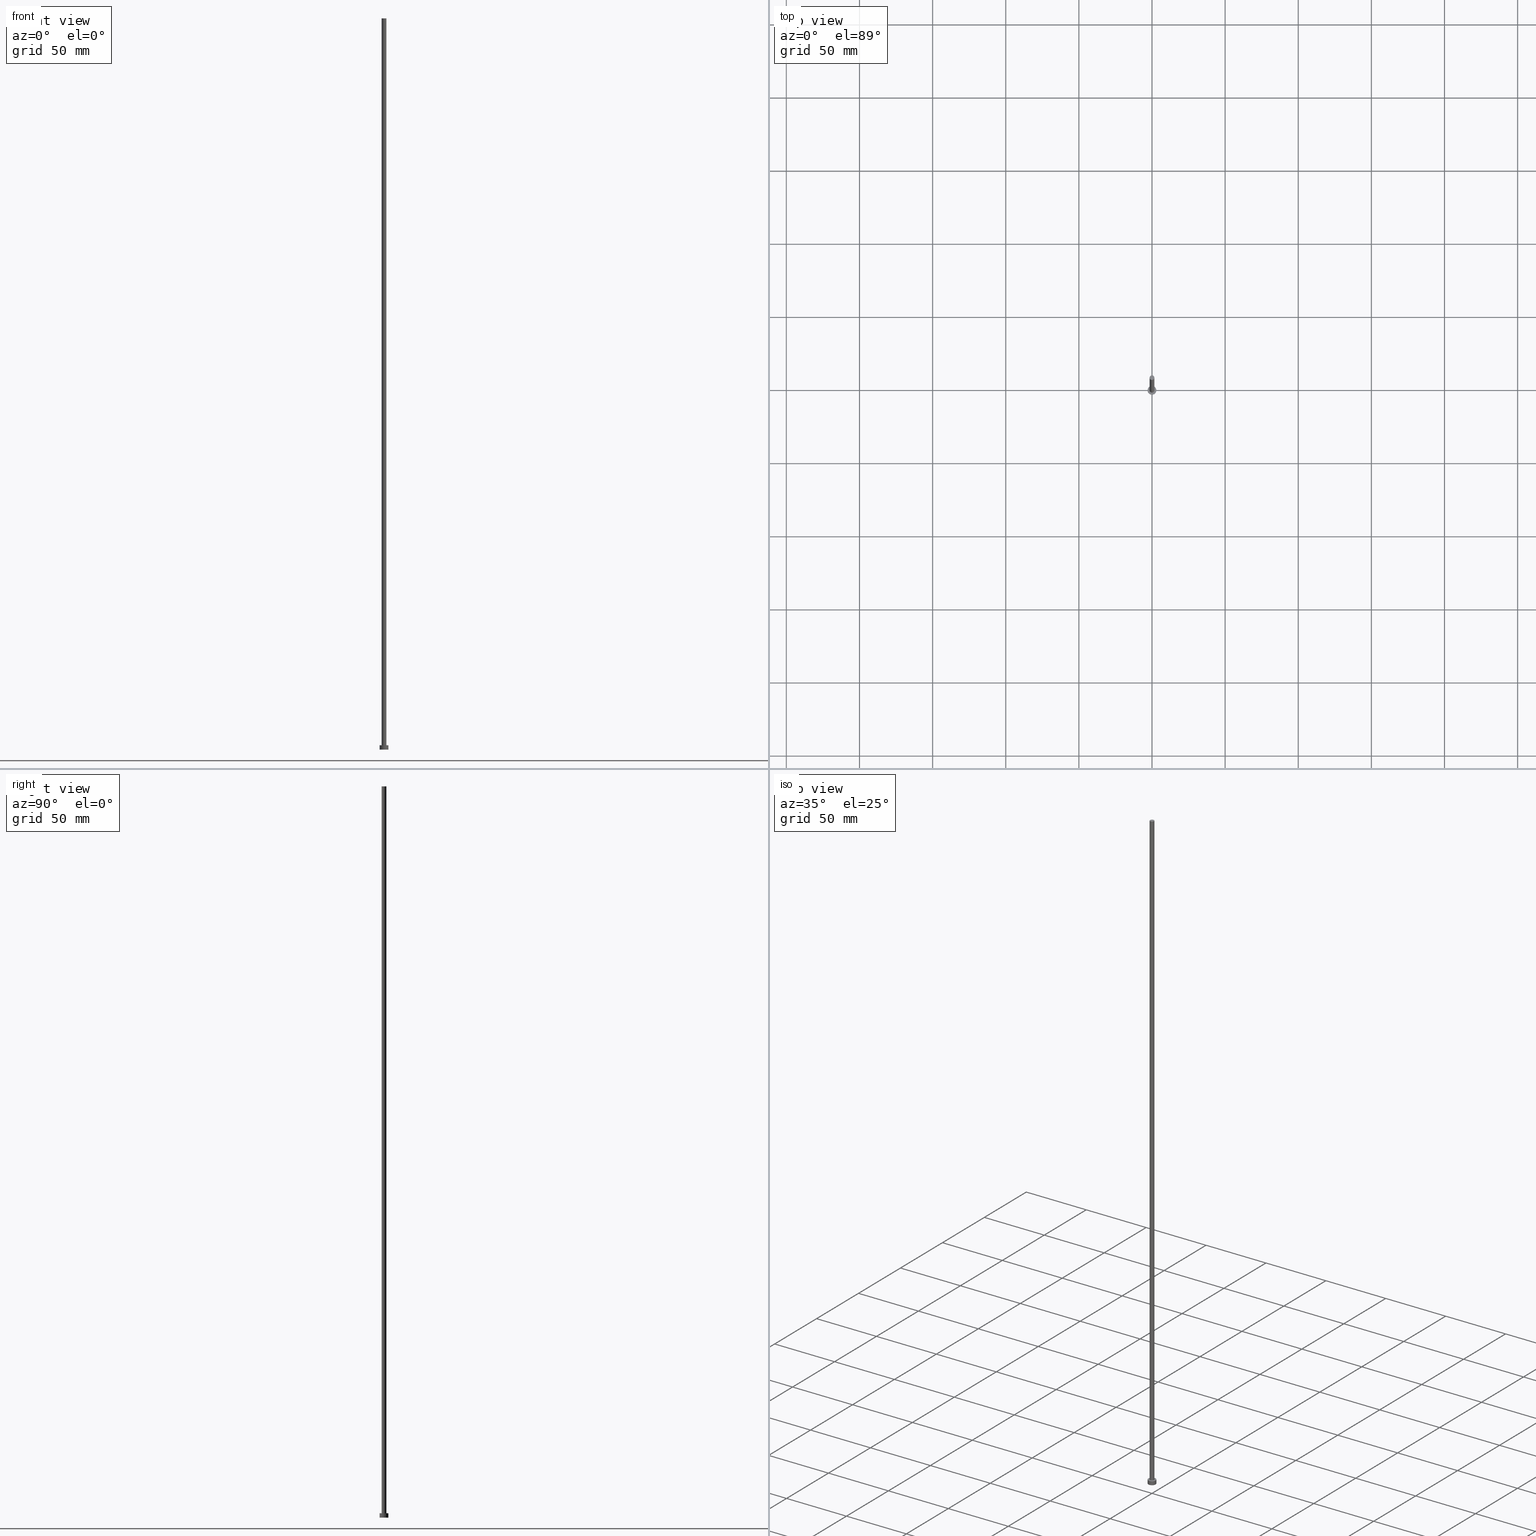
[diagram: canonical four-view strip — front | top / right | iso, engineering-drawing reading convention]
A machine part, canonical four-view strip (front | top / right | iso — engineering-drawing reading convention). The complete STEP part file that produces these views, byte-faithful:
ISO-10303-21;
HEADER;
FILE_DESCRIPTION (( 'STEP AP203' ),
    '1' );
FILE_NAME ('9312.STEP',
    '2023-02-13T16:24:27',
    ( '' ),
    ( '' ),
    'SwSTEP 2.0',
    'SolidWorks 2019',
    '' );
FILE_SCHEMA (( 'CONFIG_CONTROL_DESIGN' ));
ENDSEC;

DATA;
#1 = DIRECTION ( 'NONE',  ( 1.000000000000000000, 0.000000000000000000, 0.000000000000000000 ) ) ;
#2 = DIRECTION ( 'NONE',  ( 0.000000000000000000, 0.000000000000000000, 1.000000000000000000 ) ) ;
#3 = VECTOR ( 'NONE', #23, 1000.000000000000000 ) ;
#4 = AXIS2_PLACEMENT_3D ( 'NONE', #56, #176, #54 ) ;
#5 = UNCERTAINTY_MEASURE_WITH_UNIT (LENGTH_MEASURE( 1.000000000000000082E-05 ), #64, 'distance_accuracy_value', 'NONE');
#6 = CARTESIAN_POINT ( 'NONE',  ( -1.600000000000000089, 0.000000000000000000, 3.000000000000000000 ) ) ;
#7 = CALENDAR_DATE ( 2023, 13, 2 ) ;
#8 = CC_DESIGN_APPROVAL ( #170, ( #150 ) ) ;
#9 = CALENDAR_DATE ( 2023, 13, 2 ) ;
#10 = COORDINATED_UNIVERSAL_TIME_OFFSET ( 1, 0, .AHEAD. ) ;
#11 = CC_DESIGN_DATE_AND_TIME_ASSIGNMENT ( #203, #71, ( #167 ) ) ;
#12 = CALENDAR_DATE ( 2023, 13, 2 ) ;
#13 = VERTEX_POINT ( 'NONE', #14 ) ;
#14 = CARTESIAN_POINT ( 'NONE',  ( 3.000000000000000444, 3.673940397442060361E-16, 3.000000000000000000 ) ) ;
#15 = DIRECTION ( 'NONE',  ( -0.000000000000000000, -0.000000000000000000, -1.000000000000000000 ) ) ;
#16 = CARTESIAN_POINT ( 'NONE',  ( -3.000000000000000444, 0.000000000000000000, 3.000000000000000000 ) ) ;
#17 = CARTESIAN_POINT ( 'NONE',  ( -3.000000000000000444, 0.000000000000000000, 0.000000000000000000 ) ) ;
#18 = CARTESIAN_POINT ( 'NONE',  ( 0.000000000000000000, 0.000000000000000000, 3.000000000000000000 ) ) ;
#19 = CC_DESIGN_SECURITY_CLASSIFICATION ( #167, ( #48 ) ) ;
#20 =( NAMED_UNIT ( * ) PLANE_ANGLE_UNIT ( ) SI_UNIT ( $, .RADIAN. ) );
#21 = LINE ( 'NONE', #86, #254 ) ;
#22 = CC_DESIGN_PERSON_AND_ORGANIZATION_ASSIGNMENT ( #127, #45, ( #150 ) ) ;
#23 = DIRECTION ( 'NONE',  ( -0.000000000000000000, -0.000000000000000000, -1.000000000000000000 ) ) ;
#24 =( GEOMETRIC_REPRESENTATION_CONTEXT ( 3 ) GLOBAL_UNCERTAINTY_ASSIGNED_CONTEXT ( ( #5 ) ) GLOBAL_UNIT_ASSIGNED_CONTEXT ( ( #64, #20, #141 ) ) REPRESENTATION_CONTEXT ( 'NONE', 'WORKASPACE' ) );
#25 = EDGE_CURVE ( 'NONE', #106, #13, #249, .T. ) ;
#26 = PERSON_AND_ORGANIZATION ( #142, #43 ) ;
#27 = PERSON_AND_ORGANIZATION_ROLE ( 'design_owner' ) ;
#28 = DATE_AND_TIME ( #146, #53 ) ;
#29 = DATE_AND_TIME ( #166, #40 ) ;
#30 = ORIENTED_EDGE ( 'NONE', *, *, #159, .T. ) ;
#31 = VERTEX_POINT ( 'NONE', #250 ) ;
#32 = CARTESIAN_POINT ( 'NONE',  ( 0.000000000000000000, 0.000000000000000000, 3.000000000000000000 ) ) ;
#33 = ORIENTED_EDGE ( 'NONE', *, *, #139, .F. ) ;
#34 = CIRCLE ( 'NONE', #4, 3.000000000000000444 ) ;
#35 = APPROVAL_PERSON_ORGANIZATION ( #107, #72, #105 ) ;
#36 = DIRECTION ( 'NONE',  ( 1.000000000000000000, 0.000000000000000000, 0.000000000000000000 ) ) ;
#37 = CARTESIAN_POINT ( 'NONE',  ( 0.000000000000000000, 0.000000000000000000, 0.000000000000000000 ) ) ;
#38 = CARTESIAN_POINT ( 'NONE',  ( -3.000000000000000444, 0.000000000000000000, 3.000000000000000000 ) ) ;
#39 = PLANE ( 'NONE',  #145 ) ;
#40 = LOCAL_TIME ( 17, 24, 27.00000000000000000, #183 ) ;
#41 = CARTESIAN_POINT ( 'NONE',  ( 3.000000000000000444, 3.673940397442060361E-16, 3.000000000000000000 ) ) ;
#42 = AXIS2_PLACEMENT_3D ( 'NONE', #111, #218, #1 ) ;
#43 = ORGANIZATION ( 'NEUR�EN�', 'NEUR�EN�', '' ) ;
#44 = MECHANICAL_CONTEXT ( 'NONE', #248, 'mechanical' ) ;
#45 = PERSON_AND_ORGANIZATION_ROLE ( 'creator' ) ;
#46 = APPROVAL_ROLE ( '' ) ;
#47 = ORIENTED_EDGE ( 'NONE', *, *, #215, .T. ) ;
#48 = PRODUCT_DEFINITION_FORMATION_WITH_SPECIFIED_SOURCE ( 'LIBOVOLN�', '', #74, .NOT_KNOWN. ) ;
#49 = PRODUCT_RELATED_PRODUCT_CATEGORY ( 'detail', '', ( #74 ) ) ;
#50 = DATE_AND_TIME ( #7, #233 ) ;
#51 = ORIENTED_EDGE ( 'NONE', *, *, #25, .T. ) ;
#52 = APPROVAL ( #104, 'NEUR�EN�' ) ;
#53 = LOCAL_TIME ( 17, 24, 27.00000000000000000, #165 ) ;
#54 = DIRECTION ( 'NONE',  ( 1.000000000000000000, 0.000000000000000000, 0.000000000000000000 ) ) ;
#55 = LINE ( 'NONE', #210, #212 ) ;
#56 = CARTESIAN_POINT ( 'NONE',  ( 0.000000000000000000, 0.000000000000000000, 3.000000000000000000 ) ) ;
#57 = CIRCLE ( 'NONE', #227, 3.000000000000000444 ) ;
#58 = VERTEX_POINT ( 'NONE', #17 ) ;
#59 = FACE_OUTER_BOUND ( 'NONE', #191, .T. ) ;
#60 = CIRCLE ( 'NONE', #220, 1.600000000000000089 ) ;
#61 = FACE_OUTER_BOUND ( 'NONE', #193, .T. ) ;
#62 = CC_DESIGN_APPROVAL ( #52, ( #167 ) ) ;
#63 = ADVANCED_FACE ( 'NONE', ( #132 ), #169, .F. ) ;
#64 =( LENGTH_UNIT ( ) NAMED_UNIT ( * ) SI_UNIT ( .MILLI., .METRE. ) );
#65 = DIRECTION ( 'NONE',  ( -1.000000000000000000, 0.000000000000000000, 0.000000000000000000 ) ) ;
#66 = DATE_TIME_ROLE ( 'creation_date' ) ;
#67 = ORIENTED_EDGE ( 'NONE', *, *, #93, .F. ) ;
#68 = APPLICATION_PROTOCOL_DEFINITION ( 'international standard', 'config_control_design', 1994, #248 ) ;
#69 = PERSON_AND_ORGANIZATION ( #142, #43 ) ;
#70 = AXIS2_PLACEMENT_3D ( 'NONE', #118, #2, #216 ) ;
#71 = DATE_TIME_ROLE ( 'classification_date' ) ;
#72 = APPROVAL ( #121, 'NEUR�EN�' ) ;
#73 = ORIENTED_EDGE ( 'NONE', *, *, #159, .F. ) ;
#74 = PRODUCT ( '9312', '9312', '', ( #44 ) ) ;
#75 = ORIENTED_EDGE ( 'NONE', *, *, #144, .F. ) ;
#76 = CARTESIAN_POINT ( 'NONE',  ( 3.000000000000000444, 3.673940397442060361E-16, 0.000000000000000000 ) ) ;
#77 = CC_DESIGN_PERSON_AND_ORGANIZATION_ASSIGNMENT ( #244, #27, ( #74 ) ) ;
#78 = ORIENTED_EDGE ( 'NONE', *, *, #25, .F. ) ;
#79 = CIRCLE ( 'NONE', #123, 1.600000000000000089 ) ;
#80 = CYLINDRICAL_SURFACE ( 'NONE', #133, 3.000000000000000444 ) ;
#81 = CARTESIAN_POINT ( 'NONE',  ( 0.000000000000000000, 0.000000000000000000, 0.000000000000000000 ) ) ;
#82 = CC_DESIGN_PERSON_AND_ORGANIZATION_ASSIGNMENT ( #69, #245, ( #167 ) ) ;
#83 = DIRECTION ( 'NONE',  ( 0.000000000000000000, 0.000000000000000000, 1.000000000000000000 ) ) ;
#84 = CIRCLE ( 'NONE', #158, 1.600000000000000089 ) ;
#85 = CLOSED_SHELL ( 'NONE', ( #178, #182, #112, #253, #63, #89, #247 ) ) ;
#86 = CARTESIAN_POINT ( 'NONE',  ( 1.600000000000000089, 1.959434878635764737E-16, 500.0000000000000000 ) ) ;
#87 = PLANE ( 'NONE',  #70 ) ;
#88 = DIRECTION ( 'NONE',  ( -0.000000000000000000, -0.000000000000000000, -1.000000000000000000 ) ) ;
#89 = ADVANCED_FACE ( 'NONE', ( #99 ), #228, .T. ) ;
#90 = APPROVAL_ROLE ( '' ) ;
#91 = EDGE_LOOP ( 'NONE', ( #153, #30, #168, #174 ) ) ;
#92 = APPROVAL_DATE_TIME ( #122, #170 ) ;
#93 = EDGE_CURVE ( 'NONE', #13, #106, #34, .T. ) ;
#94 = ORIENTED_EDGE ( 'NONE', *, *, #185, .T. ) ;
#95 = ORIENTED_EDGE ( 'NONE', *, *, #215, .F. ) ;
#96 = AXIS2_PLACEMENT_3D ( 'NONE', #192, #134, #151 ) ;
#97 = ORIENTED_EDGE ( 'NONE', *, *, #185, .F. ) ;
#98 = ORIENTED_EDGE ( 'NONE', *, *, #195, .F. ) ;
#99 = FACE_OUTER_BOUND ( 'NONE', #207, .T. ) ;
#100 = DIRECTION ( 'NONE',  ( 0.000000000000000000, 0.000000000000000000, 1.000000000000000000 ) ) ;
#101 = DIRECTION ( 'NONE',  ( 0.000000000000000000, 0.000000000000000000, 1.000000000000000000 ) ) ;
#102 = AXIS2_PLACEMENT_3D ( 'NONE', #179, #180, #177 ) ;
#103 = DIRECTION ( 'NONE',  ( -0.000000000000000000, -0.000000000000000000, -1.000000000000000000 ) ) ;
#104 = APPROVAL_STATUS ( 'not_yet_approved' ) ;
#105 = APPROVAL_ROLE ( '' ) ;
#106 = VERTEX_POINT ( 'NONE', #16 ) ;
#107 = PERSON_AND_ORGANIZATION ( #142, #43 ) ;
#108 = ORIENTED_EDGE ( 'NONE', *, *, #195, .T. ) ;
#109 = ORIENTED_EDGE ( 'NONE', *, *, #232, .T. ) ;
#110 = VERTEX_POINT ( 'NONE', #129 ) ;
#111 = CARTESIAN_POINT ( 'NONE',  ( 0.000000000000000000, 0.000000000000000000, 500.0000000000000000 ) ) ;
#112 = ADVANCED_FACE ( 'NONE', ( #208 ), #80, .T. ) ;
#113 = DIRECTION ( 'NONE',  ( 1.000000000000000000, 0.000000000000000000, -0.000000000000000000 ) ) ;
#114 = CYLINDRICAL_SURFACE ( 'NONE', #148, 3.000000000000000444 ) ;
#115 = DIRECTION ( 'NONE',  ( 1.000000000000000000, 0.000000000000000000, -0.000000000000000000 ) ) ;
#116 = DIRECTION ( 'NONE',  ( 0.000000000000000000, 0.000000000000000000, 1.000000000000000000 ) ) ;
#117 = AXIS2_PLACEMENT_3D ( 'NONE', #230, #213, #36 ) ;
#118 = CARTESIAN_POINT ( 'NONE',  ( 0.000000000000000000, 0.000000000000000000, 500.0000000000000000 ) ) ;
#119 = EDGE_CURVE ( 'NONE', #110, #224, #55, .T. ) ;
#120 = PERSON_AND_ORGANIZATION_ROLE ( 'creator' ) ;
#121 = APPROVAL_STATUS ( 'not_yet_approved' ) ;
#122 = DATE_AND_TIME ( #9, #162 ) ;
#123 = AXIS2_PLACEMENT_3D ( 'NONE', #136, #83, #199 ) ;
#124 = EDGE_LOOP ( 'NONE', ( #75, #128 ) ) ;
#125 = SECURITY_CLASSIFICATION_LEVEL ( 'unclassified' ) ;
#126 = VERTEX_POINT ( 'NONE', #251 ) ;
#127 = PERSON_AND_ORGANIZATION ( #142, #43 ) ;
#128 = ORIENTED_EDGE ( 'NONE', *, *, #200, .F. ) ;
#129 = CARTESIAN_POINT ( 'NONE',  ( -1.600000000000000089, 0.000000000000000000, 500.0000000000000000 ) ) ;
#130 = MANIFOLD_SOLID_BREP ( 'P�idat vysunut�m3', #85 ) ;
#131 = VERTEX_POINT ( 'NONE', #76 ) ;
#132 = FACE_OUTER_BOUND ( 'NONE', #164, .T. ) ;
#133 = AXIS2_PLACEMENT_3D ( 'NONE', #32, #152, #229 ) ;
#134 = DIRECTION ( 'NONE',  ( 0.000000000000000000, 0.000000000000000000, 1.000000000000000000 ) ) ;
#135 = EDGE_CURVE ( 'NONE', #58, #131, #138, .T. ) ;
#136 = CARTESIAN_POINT ( 'NONE',  ( 0.000000000000000000, 0.000000000000000000, 3.000000000000000000 ) ) ;
#137 = LINE ( 'NONE', #41, #172 ) ;
#138 = CIRCLE ( 'NONE', #117, 3.000000000000000444 ) ;
#139 = EDGE_CURVE ( 'NONE', #110, #31, #238, .T. ) ;
#140 = CC_DESIGN_APPROVAL ( #72, ( #48 ) ) ;
#141 =( NAMED_UNIT ( * ) SI_UNIT ( $, .STERADIAN. ) SOLID_ANGLE_UNIT ( ) );
#142 = PERSON ( 'NEUR�EN�', 'NEUR�EN�', 'NEUR�EN�', ('NEUR�EN�'), ('NEUR�EN�'), ('NEUR�EN�') ) ;
#143 = FACE_BOUND ( 'NONE', #124, .T. ) ;
#144 = EDGE_CURVE ( 'NONE', #224, #126, #79, .T. ) ;
#145 = AXIS2_PLACEMENT_3D ( 'NONE', #202, #100, #115 ) ;
#146 = CALENDAR_DATE ( 2023, 13, 2 ) ;
#147 = DIRECTION ( 'NONE',  ( 0.000000000000000000, 0.000000000000000000, 1.000000000000000000 ) ) ;
#148 = AXIS2_PLACEMENT_3D ( 'NONE', #219, #239, #65 ) ;
#149 = COORDINATED_UNIVERSAL_TIME_OFFSET ( 1, 0, .AHEAD. ) ;
#150 = PRODUCT_DEFINITION ( 'NEZN�M�', '', #48, #197 ) ;
#151 = DIRECTION ( 'NONE',  ( 1.000000000000000000, 0.000000000000000000, 0.000000000000000000 ) ) ;
#152 = DIRECTION ( 'NONE',  ( -0.000000000000000000, -0.000000000000000000, -1.000000000000000000 ) ) ;
#153 = ORIENTED_EDGE ( 'NONE', *, *, #232, .F. ) ;
#154 = DIRECTION ( 'NONE',  ( -0.000000000000000000, -0.000000000000000000, -1.000000000000000000 ) ) ;
#155 = ORIENTED_EDGE ( 'NONE', *, *, #119, .T. ) ;
#156 = DIRECTION ( 'NONE',  ( 1.000000000000000000, 0.000000000000000000, 0.000000000000000000 ) ) ;
#157 = CYLINDRICAL_SURFACE ( 'NONE', #102, 1.600000000000000089 ) ;
#158 = AXIS2_PLACEMENT_3D ( 'NONE', #18, #116, #156 ) ;
#159 = EDGE_CURVE ( 'NONE', #31, #126, #21, .T. ) ;
#160 = FACE_OUTER_BOUND ( 'NONE', #91, .T. ) ;
#161 = CC_DESIGN_DATE_AND_TIME_ASSIGNMENT ( #29, #66, ( #150 ) ) ;
#162 = LOCAL_TIME ( 17, 24, 27.00000000000000000, #240 ) ;
#163 = APPROVAL_DATE_TIME ( #50, #52 ) ;
#164 = EDGE_LOOP ( 'NONE', ( #190, #95 ) ) ;
#165 = COORDINATED_UNIVERSAL_TIME_OFFSET ( 1, 0, .AHEAD. ) ;
#166 = CALENDAR_DATE ( 2023, 13, 2 ) ;
#167 = SECURITY_CLASSIFICATION ( '', '', #125 ) ;
#168 = ORIENTED_EDGE ( 'NONE', *, *, #200, .T. ) ;
#169 = PLANE ( 'NONE',  #241 ) ;
#170 = APPROVAL ( #226, 'NEUR�EN�' ) ;
#171 = EDGE_LOOP ( 'NONE', ( #51, #175 ) ) ;
#172 = VECTOR ( 'NONE', #103, 1000.000000000000000 ) ;
#173 = AXIS2_PLACEMENT_3D ( 'NONE', #222, #147, #242 ) ;
#174 = ORIENTED_EDGE ( 'NONE', *, *, #119, .F. ) ;
#175 = ORIENTED_EDGE ( 'NONE', *, *, #93, .T. ) ;
#176 = DIRECTION ( 'NONE',  ( 0.000000000000000000, 0.000000000000000000, 1.000000000000000000 ) ) ;
#177 = DIRECTION ( 'NONE',  ( -1.000000000000000000, 0.000000000000000000, 0.000000000000000000 ) ) ;
#178 = ADVANCED_FACE ( 'NONE', ( #160 ), #157, .T. ) ;
#179 = CARTESIAN_POINT ( 'NONE',  ( 0.000000000000000000, 0.000000000000000000, 500.0000000000000000 ) ) ;
#180 = DIRECTION ( 'NONE',  ( -0.000000000000000000, -0.000000000000000000, -1.000000000000000000 ) ) ;
#181 = DIRECTION ( 'NONE',  ( 1.000000000000000000, 0.000000000000000000, 0.000000000000000000 ) ) ;
#182 = ADVANCED_FACE ( 'NONE', ( #61 ), #114, .T. ) ;
#183 = COORDINATED_UNIVERSAL_TIME_OFFSET ( 1, 0, .AHEAD. ) ;
#184 = PERSON_AND_ORGANIZATION ( #142, #43 ) ;
#185 = EDGE_CURVE ( 'NONE', #106, #58, #196, .T. ) ;
#186 = PERSON_AND_ORGANIZATION_ROLE ( 'design_supplier' ) ;
#187 = APPLICATION_PROTOCOL_DEFINITION ( 'international standard', 'config_control_design', 1994, #209 ) ;
#188 = ORIENTED_EDGE ( 'NONE', *, *, #144, .T. ) ;
#189 = CC_DESIGN_PERSON_AND_ORGANIZATION_ASSIGNMENT ( #184, #186, ( #48 ) ) ;
#190 = ORIENTED_EDGE ( 'NONE', *, *, #135, .F. ) ;
#191 = EDGE_LOOP ( 'NONE', ( #246, #109 ) ) ;
#192 = CARTESIAN_POINT ( 'NONE',  ( 0.000000000000000000, 0.000000000000000000, 3.000000000000000000 ) ) ;
#193 = EDGE_LOOP ( 'NONE', ( #67, #108, #47, #97 ) ) ;
#194 = DIRECTION ( 'NONE',  ( -1.000000000000000000, 0.000000000000000000, 0.000000000000000000 ) ) ;
#195 = EDGE_CURVE ( 'NONE', #13, #131, #137, .T. ) ;
#196 = LINE ( 'NONE', #38, #3 ) ;
#197 = DESIGN_CONTEXT ( 'detailed design', #209, 'design' ) ;
#198 = CARTESIAN_POINT ( 'NONE',  ( 0.000000000000000000, 0.000000000000000000, 500.0000000000000000 ) ) ;
#199 = DIRECTION ( 'NONE',  ( 1.000000000000000000, 0.000000000000000000, 0.000000000000000000 ) ) ;
#200 = EDGE_CURVE ( 'NONE', #126, #224, #84, .T. ) ;
#201 = APPROVAL_PERSON_ORGANIZATION ( #26, #52, #90 ) ;
#202 = CARTESIAN_POINT ( 'NONE',  ( 0.000000000000000000, 0.000000000000000000, 3.000000000000000000 ) ) ;
#203 = DATE_AND_TIME ( #12, #204 ) ;
#204 = LOCAL_TIME ( 17, 24, 27.00000000000000000, #10 ) ;
#205 = APPROVAL_DATE_TIME ( #28, #72 ) ;
#206 = SHAPE_DEFINITION_REPRESENTATION ( #243, #211 ) ;
#207 = EDGE_LOOP ( 'NONE', ( #73, #33, #155, #188 ) ) ;
#208 = FACE_OUTER_BOUND ( 'NONE', #252, .T. ) ;
#209 = APPLICATION_CONTEXT ( 'configuration controlled 3d designs of mechanical parts and assemblies' ) ;
#210 = CARTESIAN_POINT ( 'NONE',  ( -1.600000000000000089, 0.000000000000000000, 500.0000000000000000 ) ) ;
#211 = ADVANCED_BREP_SHAPE_REPRESENTATION ( '9312', ( #130, #173 ), #24 ) ;
#212 = VECTOR ( 'NONE', #15, 1000.000000000000000 ) ;
#213 = DIRECTION ( 'NONE',  ( 0.000000000000000000, 0.000000000000000000, 1.000000000000000000 ) ) ;
#214 = DIRECTION ( 'NONE',  ( 0.000000000000000000, 0.000000000000000000, 1.000000000000000000 ) ) ;
#215 = EDGE_CURVE ( 'NONE', #131, #58, #57, .T. ) ;
#216 = DIRECTION ( 'NONE',  ( 1.000000000000000000, 0.000000000000000000, -0.000000000000000000 ) ) ;
#217 = FACE_OUTER_BOUND ( 'NONE', #171, .T. ) ;
#218 = DIRECTION ( 'NONE',  ( 0.000000000000000000, 0.000000000000000000, 1.000000000000000000 ) ) ;
#219 = CARTESIAN_POINT ( 'NONE',  ( 0.000000000000000000, 0.000000000000000000, 3.000000000000000000 ) ) ;
#220 = AXIS2_PLACEMENT_3D ( 'NONE', #198, #101, #236 ) ;
#221 = PERSON_AND_ORGANIZATION ( #142, #43 ) ;
#222 = CARTESIAN_POINT ( 'NONE',  ( 0.000000000000000000, 0.000000000000000000, 0.000000000000000000 ) ) ;
#223 = PERSON_AND_ORGANIZATION ( #142, #43 ) ;
#224 = VERTEX_POINT ( 'NONE', #6 ) ;
#225 = AXIS2_PLACEMENT_3D ( 'NONE', #255, #154, #194 ) ;
#226 = APPROVAL_STATUS ( 'not_yet_approved' ) ;
#227 = AXIS2_PLACEMENT_3D ( 'NONE', #81, #234, #181 ) ;
#228 = CYLINDRICAL_SURFACE ( 'NONE', #225, 1.600000000000000089 ) ;
#229 = DIRECTION ( 'NONE',  ( -1.000000000000000000, 0.000000000000000000, 0.000000000000000000 ) ) ;
#230 = CARTESIAN_POINT ( 'NONE',  ( 0.000000000000000000, 0.000000000000000000, 0.000000000000000000 ) ) ;
#231 = ORIENTED_EDGE ( 'NONE', *, *, #135, .T. ) ;
#232 = EDGE_CURVE ( 'NONE', #31, #110, #60, .T. ) ;
#233 = LOCAL_TIME ( 17, 24, 27.00000000000000000, #149 ) ;
#234 = DIRECTION ( 'NONE',  ( 0.000000000000000000, 0.000000000000000000, 1.000000000000000000 ) ) ;
#235 = CC_DESIGN_PERSON_AND_ORGANIZATION_ASSIGNMENT ( #221, #120, ( #48 ) ) ;
#236 = DIRECTION ( 'NONE',  ( 1.000000000000000000, 0.000000000000000000, 0.000000000000000000 ) ) ;
#237 = APPROVAL_PERSON_ORGANIZATION ( #223, #170, #46 ) ;
#238 = CIRCLE ( 'NONE', #42, 1.600000000000000089 ) ;
#239 = DIRECTION ( 'NONE',  ( -0.000000000000000000, -0.000000000000000000, -1.000000000000000000 ) ) ;
#240 = COORDINATED_UNIVERSAL_TIME_OFFSET ( 1, 0, .AHEAD. ) ;
#241 = AXIS2_PLACEMENT_3D ( 'NONE', #37, #214, #113 ) ;
#242 = DIRECTION ( 'NONE',  ( 1.000000000000000000, 0.000000000000000000, 0.000000000000000000 ) ) ;
#243 = PRODUCT_DEFINITION_SHAPE ( 'NONE', 'NONE',  #150 ) ;
#244 = PERSON_AND_ORGANIZATION ( #142, #43 ) ;
#245 = PERSON_AND_ORGANIZATION_ROLE ( 'classification_officer' ) ;
#246 = ORIENTED_EDGE ( 'NONE', *, *, #139, .T. ) ;
#247 = ADVANCED_FACE ( 'NONE', ( #59 ), #87, .T. ) ;
#248 = APPLICATION_CONTEXT ( 'configuration controlled 3d designs of mechanical parts and assemblies' ) ;
#249 = CIRCLE ( 'NONE', #96, 3.000000000000000444 ) ;
#250 = CARTESIAN_POINT ( 'NONE',  ( 1.600000000000000089, 1.959434878635764737E-16, 500.0000000000000000 ) ) ;
#251 = CARTESIAN_POINT ( 'NONE',  ( 1.600000000000000089, 1.959434878635764737E-16, 3.000000000000000000 ) ) ;
#252 = EDGE_LOOP ( 'NONE', ( #98, #78, #94, #231 ) ) ;
#253 = ADVANCED_FACE ( 'NONE', ( #143, #217 ), #39, .T. ) ;
#254 = VECTOR ( 'NONE', #88, 1000.000000000000000 ) ;
#255 = CARTESIAN_POINT ( 'NONE',  ( 0.000000000000000000, 0.000000000000000000, 500.0000000000000000 ) ) ;
ENDSEC;
END-ISO-10303-21;
